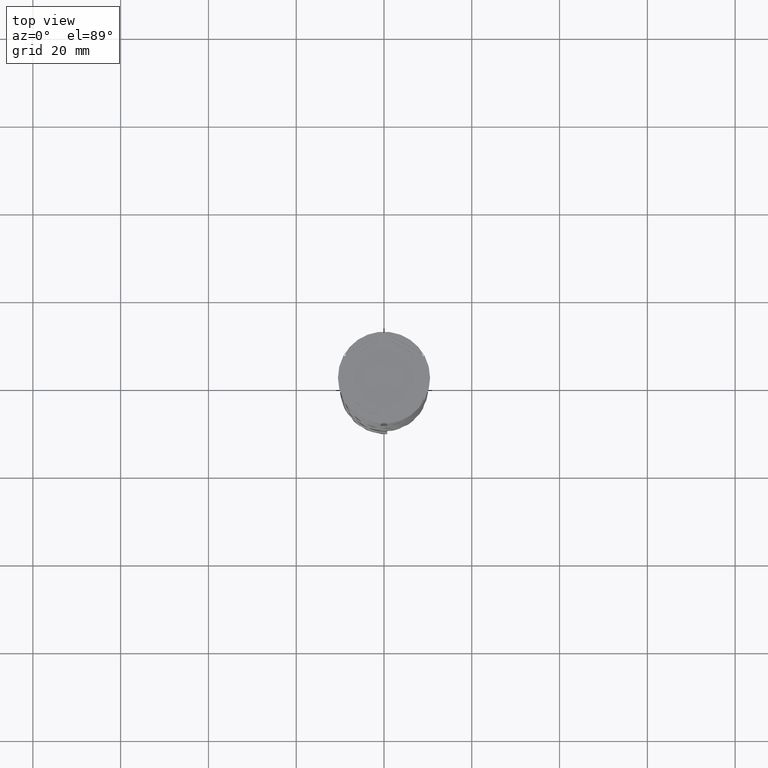
[diagram: clean part render]
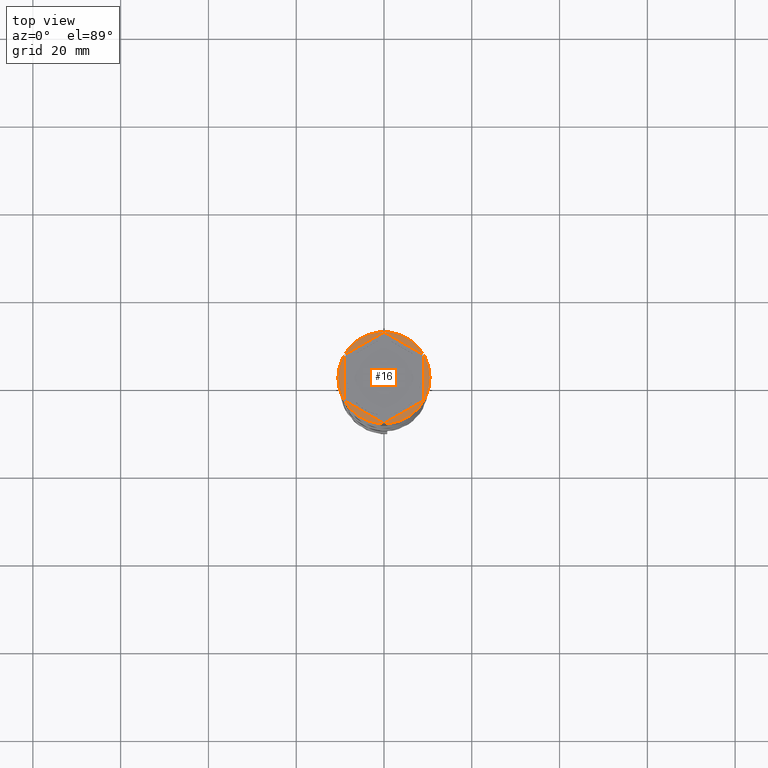
[diagram: same view with one face highlighted and labeled with its STEP entity id]
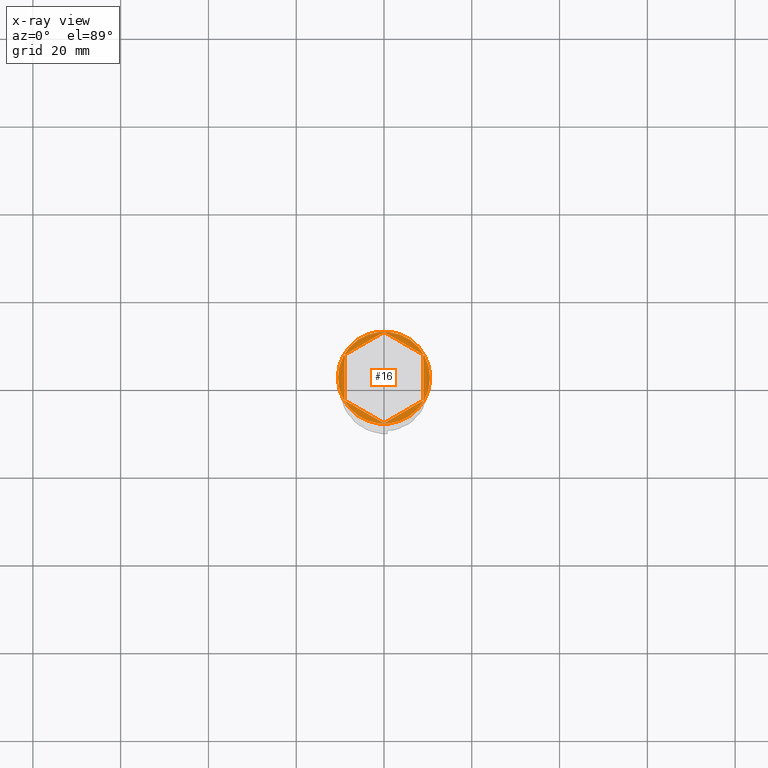
[diagram: x-ray of the same camera — body ghosted, the highlighted face saturated]
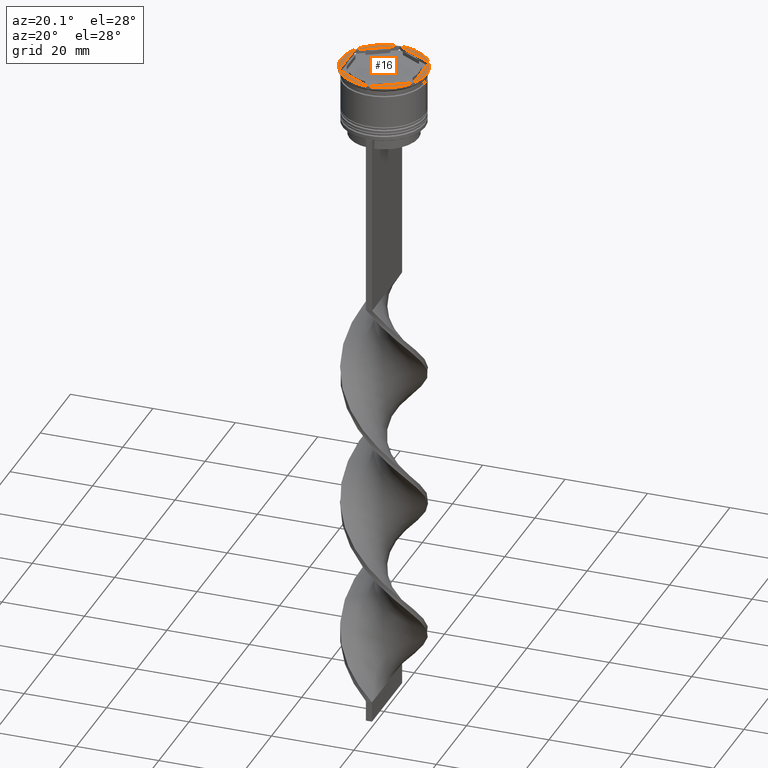
[diagram: same view with one face highlighted and labeled with its STEP entity id]
A machine part, top view. The second image highlights one B-rep face of the part: STEP entity #16.
The next image is the same camera in x-ray: the body ghosted, the highlighted face saturated — about 0% of this face is hidden behind the body in this view.
A second angle (auxiliary view) of the same face is appended — the face is thin or edge-on in the first view.
In plain terms, the highlighted planar face has unit normal (0, -0, 1).
Its self-contained STEP definition (entity closure, byte-faithful):
#7 = EDGE_CURVE ( 'NONE', #617, #1149, #3243, .T. ) ;
#16 = ADVANCED_FACE ( 'NONE', ( #1110, #491 ), #237, .T. ) ;
#92 = VECTOR ( 'NONE', #2553, 1000.000000000000114 ) ;
#109 = LINE ( 'NONE', #1088, #92 ) ;
#188 = VERTEX_POINT ( 'NONE', #1966 ) ;
#237 = PLANE ( 'NONE',  #2237 ) ;
#333 = EDGE_LOOP ( 'NONE', ( #998, #1500 ) ) ;
#339 = AXIS2_PLACEMENT_3D ( 'NONE', #2409, #1170, #3027 ) ;
#349 = CARTESIAN_POINT ( 'NONE',  ( 2.607697573705103160E-15, -10.39230484541326405, 0.000000000000000000 ) ) ;
#352 = CARTESIAN_POINT ( 'NONE',  ( -9.000000000000001776, 5.196152422706632024, 0.000000000000000000 ) ) ;
#363 = CARTESIAN_POINT ( 'NONE',  ( 9.000000000000001776, 5.196152422706632912, 0.000000000000000000 ) ) ;
#453 = CARTESIAN_POINT ( 'NONE',  ( 2.607697573705103160E-15, -10.39230484541326405, 0.000000000000000000 ) ) ;
#491 = FACE_OUTER_BOUND ( 'NONE', #333, .T. ) ;
#579 = DIRECTION ( 'NONE',  ( 1.000000000000000000, 0.000000000000000000, 0.000000000000000000 ) ) ;
#592 = VERTEX_POINT ( 'NONE', #1221 ) ;
#617 = VERTEX_POINT ( 'NONE', #3072 ) ;
#830 = VERTEX_POINT ( 'NONE', #349 ) ;
#859 = VECTOR ( 'NONE', #1971, 1000.000000000000000 ) ;
#917 = EDGE_CURVE ( 'NONE', #3015, #188, #1232, .T. ) ;
#949 = VERTEX_POINT ( 'NONE', #1511 ) ;
#998 = ORIENTED_EDGE ( 'NONE', *, *, #917, .T. ) ;
#1029 = EDGE_CURVE ( 'NONE', #1149, #949, #1504, .T. ) ;
#1070 = DIRECTION ( 'NONE',  ( -0.8660254037844385966, 0.5000000000000000000, 0.000000000000000000 ) ) ;
#1088 = CARTESIAN_POINT ( 'NONE',  ( -9.000000000000001776, -5.196152422706632912, 0.000000000000000000 ) ) ;
#1110 = FACE_BOUND ( 'NONE', #1791, .T. ) ;
#1149 = VERTEX_POINT ( 'NONE', #352 ) ;
#1170 = DIRECTION ( 'NONE',  ( -0.000000000000000000, -0.000000000000000000, 1.000000000000000000 ) ) ;
#1177 = AXIS2_PLACEMENT_3D ( 'NONE', #2974, #2639, #579 ) ;
#1221 = CARTESIAN_POINT ( 'NONE',  ( 9.000000000000001776, -5.196152422706632024, 0.000000000000000000 ) ) ;
#1232 = CIRCLE ( 'NONE', #339, 10.50000000000000000 ) ;
#1349 = LINE ( 'NONE', #3736, #2135 ) ;
#1421 = ORIENTED_EDGE ( 'NONE', *, *, #3868, .F. ) ;
#1500 = ORIENTED_EDGE ( 'NONE', *, *, #2919, .T. ) ;
#1504 = LINE ( 'NONE', #3672, #2504 ) ;
#1511 = CARTESIAN_POINT ( 'NONE',  ( -9.000000000000001776, -5.196152422706632912, 0.000000000000000000 ) ) ;
#1569 = VECTOR ( 'NONE', #3496, 1000.000000000000000 ) ;
#1700 = ORIENTED_EDGE ( 'NONE', *, *, #3897, .F. ) ;
#1791 = EDGE_LOOP ( 'NONE', ( #3780, #3057, #1700, #1421, #2145, #2301 ) ) ;
#1934 = CARTESIAN_POINT ( 'NONE',  ( 9.000000000000001776, -5.196152422706632024, 0.000000000000000000 ) ) ;
#1966 = CARTESIAN_POINT ( 'NONE',  ( -10.50000000000000000, 1.285879139104720831E-15, 0.000000000000000000 ) ) ;
#1971 = DIRECTION ( 'NONE',  ( 0.000000000000000000, 1.000000000000000000, 0.000000000000000000 ) ) ;
#1982 = DIRECTION ( 'NONE',  ( 0.000000000000000000, -0.000000000000000000, 1.000000000000000000 ) ) ;
#2061 = DIRECTION ( 'NONE',  ( -0.8660254037844385966, -0.5000000000000001110, 0.000000000000000000 ) ) ;
#2135 = VECTOR ( 'NONE', #1070, 1000.000000000000227 ) ;
#2145 = ORIENTED_EDGE ( 'NONE', *, *, #1029, .F. ) ;
#2237 = AXIS2_PLACEMENT_3D ( 'NONE', #2965, #1982, #2323 ) ;
#2287 = LINE ( 'NONE', #453, #1569 ) ;
#2301 = ORIENTED_EDGE ( 'NONE', *, *, #7, .F. ) ;
#2323 = DIRECTION ( 'NONE',  ( 1.000000000000000000, 0.000000000000000000, 0.000000000000000000 ) ) ;
#2409 = CARTESIAN_POINT ( 'NONE',  ( 0.000000000000000000, 0.000000000000000000, 0.000000000000000000 ) ) ;
#2414 = CARTESIAN_POINT ( 'NONE',  ( 10.50000000000000000, 0.000000000000000000, 0.000000000000000000 ) ) ;
#2504 = VECTOR ( 'NONE', #3689, 1000.000000000000000 ) ;
#2553 = DIRECTION ( 'NONE',  ( 0.8660254037844387076, -0.4999999999999997224, 0.000000000000000000 ) ) ;
#2639 = DIRECTION ( 'NONE',  ( -0.000000000000000000, -0.000000000000000000, 1.000000000000000000 ) ) ;
#2706 = CIRCLE ( 'NONE', #1177, 10.50000000000000000 ) ;
#2794 = EDGE_CURVE ( 'NONE', #592, #3003, #3438, .T. ) ;
#2819 = VECTOR ( 'NONE', #2061, 1000.000000000000000 ) ;
#2919 = EDGE_CURVE ( 'NONE', #188, #3015, #2706, .T. ) ;
#2965 = CARTESIAN_POINT ( 'NONE',  ( 0.000000000000000000, 0.000000000000000000, 0.000000000000000000 ) ) ;
#2974 = CARTESIAN_POINT ( 'NONE',  ( 0.000000000000000000, 0.000000000000000000, 0.000000000000000000 ) ) ;
#3003 = VERTEX_POINT ( 'NONE', #363 ) ;
#3015 = VERTEX_POINT ( 'NONE', #2414 ) ;
#3027 = DIRECTION ( 'NONE',  ( 1.000000000000000000, 0.000000000000000000, 0.000000000000000000 ) ) ;
#3057 = ORIENTED_EDGE ( 'NONE', *, *, #2794, .F. ) ;
#3072 = CARTESIAN_POINT ( 'NONE',  ( 0.000000000000000000, 10.39230484541326582, 0.000000000000000000 ) ) ;
#3243 = LINE ( 'NONE', #3511, #2819 ) ;
#3438 = LINE ( 'NONE', #1934, #859 ) ;
#3496 = DIRECTION ( 'NONE',  ( 0.8660254037844385966, 0.5000000000000001110, 0.000000000000000000 ) ) ;
#3511 = CARTESIAN_POINT ( 'NONE',  ( 0.000000000000000000, 10.39230484541326582, 0.000000000000000000 ) ) ;
#3672 = CARTESIAN_POINT ( 'NONE',  ( -9.000000000000001776, 5.196152422706632024, 0.000000000000000000 ) ) ;
#3689 = DIRECTION ( 'NONE',  ( 0.000000000000000000, -1.000000000000000000, 0.000000000000000000 ) ) ;
#3736 = CARTESIAN_POINT ( 'NONE',  ( 9.000000000000001776, 5.196152422706632912, 0.000000000000000000 ) ) ;
#3780 = ORIENTED_EDGE ( 'NONE', *, *, #3891, .F. ) ;
#3868 = EDGE_CURVE ( 'NONE', #949, #830, #109, .T. ) ;
#3891 = EDGE_CURVE ( 'NONE', #3003, #617, #1349, .T. ) ;
#3897 = EDGE_CURVE ( 'NONE', #830, #592, #2287, .T. ) ;